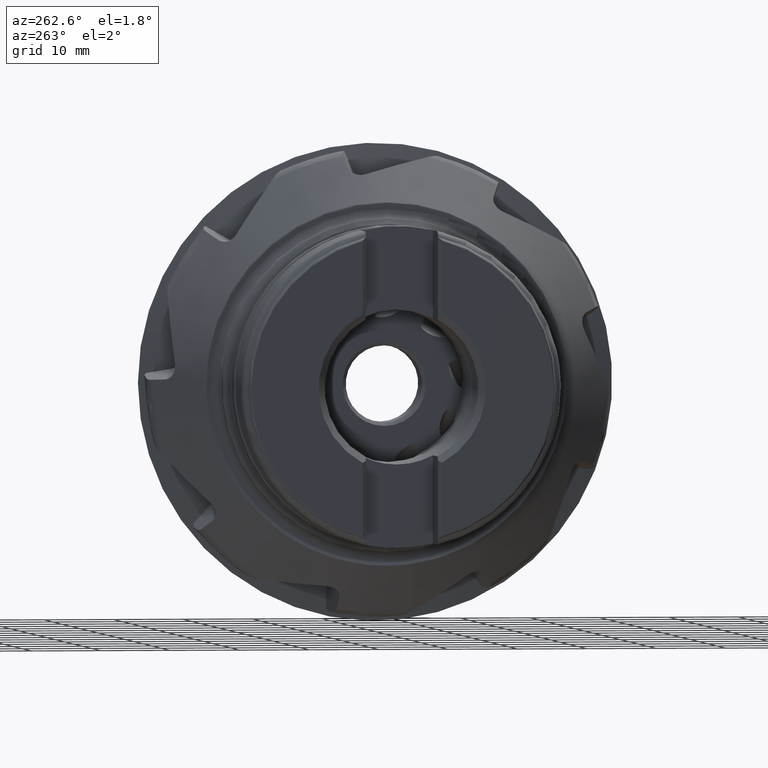
[diagram: clean part render]
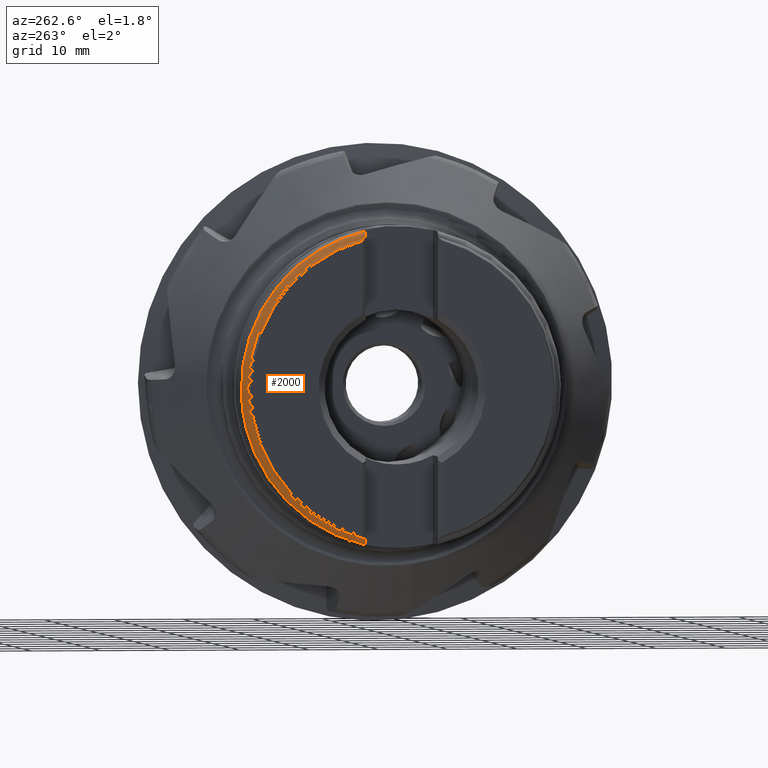
[diagram: same view with one face highlighted and labeled with its STEP entity id]
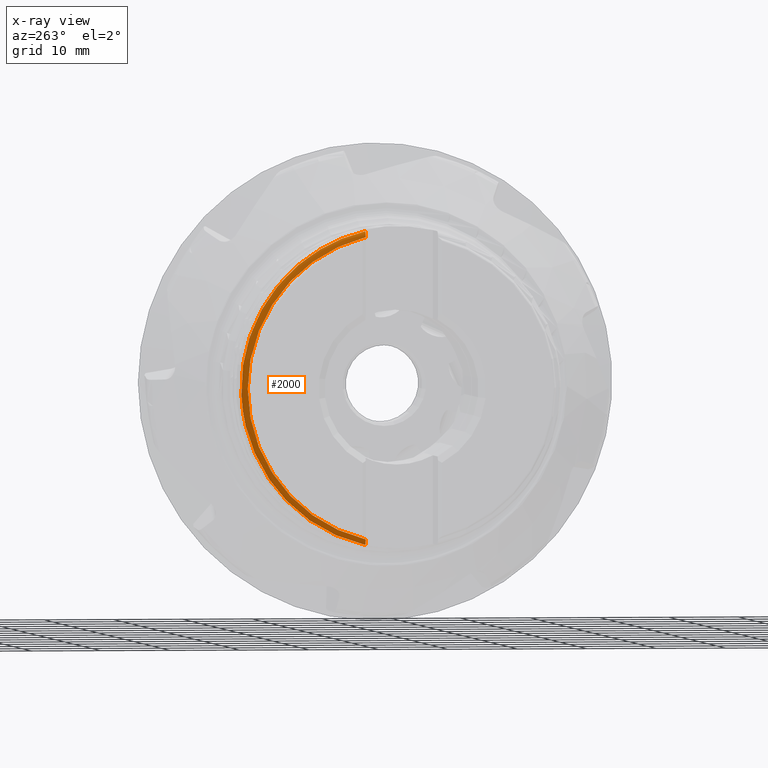
[diagram: x-ray of the same camera — body ghosted, the highlighted face saturated]
A machine part, auxiliary view. The second image highlights one B-rep face of the part: STEP entity #2000.
The next image is the same camera in x-ray: the body ghosted, the highlighted face saturated — about 0% of this face is hidden behind the body in this view.
In plain terms, the highlighted toroidal blend (fillet) surface has major radius 22 mm and minor (blend) radius 1 mm.
Its self-contained STEP definition (entity closure, byte-faithful):
#401 = CARTESIAN_POINT ( 'NONE',  ( -38.87899999999999800, 5.199999999999994800, 21.58754328310658000 ) ) ;
#448 = CARTESIAN_POINT ( 'NONE',  ( -38.01558449668618800, 5.199999999999995700, 22.40449208621245000 ) ) ;
#506 = CARTESIAN_POINT ( 'NONE',  ( -37.90023802096011000, 19.60924842205030700, -12.29230215445949200 ) ) ;
#535 = CARTESIAN_POINT ( 'NONE',  ( -38.44704383077042600, 5.199999999999994800, -22.24537780853829400 ) ) ;
#611 = DIRECTION ( 'NONE',  ( 1.000000000000000000, 1.110223024625157000E-016, -0.0000000000000000000 ) ) ;
#692 = CIRCLE ( 'NONE', #1956, 22.20499999999999800 ) ;
#969 = B_SPLINE_CURVE_WITH_KNOTS ( 'NONE', 3,
 ( #5738, #6389, #3185, #6939, #3725, #506, #4274, #1045, #4802, #1600, #5331, #2125, #5868, #2667, #6420, #3203, #6959, #3750 ),
 .UNSPECIFIED., .F., .F.,
 ( 4, 2, 2, 2, 2, 2, 2, 2, 4 ),
 ( 0.03629667594818764000, 0.08972250695813915900, 0.1431483379680906800, 0.1965741689780421400, 0.2499999999879936600, 0.3034258309979451800, 0.3568516620078966400, 0.4102774930178482200, 0.4637033240277996800 ),
 .UNSPECIFIED. ) ;
#1045 = CARTESIAN_POINT ( 'NONE',  ( -37.90023802096011700, 22.56403396095860000, -5.146619020572514600 ) ) ;
#1051 = B_SPLINE_CURVE_WITH_KNOTS ( 'NONE', 3,
 ( #2043, #5255, #6332, #3123, #6874, #3667, #448, #4209 ),
 .UNSPECIFIED., .F., .F.,
 ( 4, 2, 2, 4 ),
 ( 0.001093092714259709900, 0.001780262296063091000, 0.002123847086964781600, 0.002467431877866472200 ),
 .UNSPECIFIED. ) ;
#1075 = CARTESIAN_POINT ( 'NONE',  ( -38.83279863264558400, 5.199999999999994000, -21.81443867434664000 ) ) ;
#1524 = AXIS2_PLACEMENT_3D ( 'NONE', #2339, #3406, #6094 ) ;
#1546 = VERTEX_POINT ( 'NONE', #3507 ) ;
#1600 = CARTESIAN_POINT ( 'NONE',  ( -37.90023802096010300, 23.00000000019413800, 2.573580370861087400 ) ) ;
#1733 = ORIENTED_EDGE ( 'NONE', *, *, #4868, .T. ) ;
#1943 = EDGE_LOOP ( 'NONE', ( #4720, #3806, #2203, #1733 ) ) ;
#1956 = AXIS2_PLACEMENT_3D ( 'NONE', #3837, #611, #4369 ) ;
#2000 = ADVANCED_FACE ( 'NONE', ( #4891 ), #2034, .T. ) ;
#2034 = TOROIDAL_SURFACE ( 'NONE', #1524, 22.00000002832699100, 1.000000000000001800 ) ;
#2043 = CARTESIAN_POINT ( 'NONE',  ( -38.87899999999999800, 5.199999999999994800, 21.58754328310658000 ) ) ;
#2125 = CARTESIAN_POINT ( 'NONE',  ( -37.90023802096010300, 20.86847972057372000, 10.00649139739876500 ) ) ;
#2203 = ORIENTED_EDGE ( 'NONE', *, *, #4643, .T. ) ;
#2339 = CARTESIAN_POINT ( 'NONE',  ( -37.90023802096011000, -3.469446951953614200E-015, 0.0000000000000000000 ) ) ;
#2374 = VERTEX_POINT ( 'NONE', #6582 ) ;
#2667 = CARTESIAN_POINT ( 'NONE',  ( -37.90023802096010300, 16.40741438976009900, 16.32237939079059400 ) ) ;
#2742 = EDGE_CURVE ( 'NONE', #2374, #1546, #3635, .T. ) ;
#3123 = CARTESIAN_POINT ( 'NONE',  ( -38.44654180232642200, 5.199999999999995700, 22.24570046653463300 ) ) ;
#3185 = CARTESIAN_POINT ( 'NONE',  ( -37.90023802096011000, 10.11479201349475900, -20.81620278672252800 ) ) ;
#3203 = CARTESIAN_POINT ( 'NONE',  ( -37.90023802096011700, 10.11479201663543600, 20.81620278519644500 ) ) ;
#3406 = DIRECTION ( 'NONE',  ( 1.000000000000000000, 1.110223024625157000E-016, -0.0000000000000000000 ) ) ;
#3507 = CARTESIAN_POINT ( 'NONE',  ( -38.87899999999999800, 5.199999999999994800, -21.58754328310658000 ) ) ;
#3635 = B_SPLINE_CURVE_WITH_KNOTS ( 'NONE', 3,
 ( #6426, #4785, #6963, #3754, #535, #4293, #1075, #4835 ),
 .UNSPECIFIED., .F., .F.,
 ( 4, 2, 2, 4 ),
 ( 0.005669678194366085800, 0.006012750231703355200, 0.006355822269040625400, 0.007041966343715165000 ),
 .UNSPECIFIED. ) ;
#3667 = CARTESIAN_POINT ( 'NONE',  ( -38.12964888399678600, 5.199999999999994800, 22.38408018378375500 ) ) ;
#3725 = CARTESIAN_POINT ( 'NONE',  ( -37.90023802096010300, 16.40741438729743300, -16.32237939326607900 ) ) ;
#3750 = CARTESIAN_POINT ( 'NONE',  ( -37.90011900015348800, 5.200000003380011100, 22.40446384015578500 ) ) ;
#3754 = CARTESIAN_POINT ( 'NONE',  ( -38.34519710526895900, 5.199999999999994000, -22.30466549502941800 ) ) ;
#3806 = ORIENTED_EDGE ( 'NONE', *, *, #2742, .T. ) ;
#3837 = CARTESIAN_POINT ( 'NONE',  ( -38.87899999999999800, -4.316436097440147400E-015, 0.0000000000000000000 ) ) ;
#4186 = CARTESIAN_POINT ( 'NONE',  ( -37.90011900015348800, 5.200000003380011100, 22.40446384015578500 ) ) ;
#4209 = CARTESIAN_POINT ( 'NONE',  ( -37.90011900015348800, 5.200000003380011100, 22.40446384015578500 ) ) ;
#4274 = CARTESIAN_POINT ( 'NONE',  ( -37.90023802096011000, 20.86847971906398400, -10.00649140054731800 ) ) ;
#4293 = CARTESIAN_POINT ( 'NONE',  ( -38.71237594384091800, 5.199999999999995700, -22.02121008489639200 ) ) ;
#4369 = DIRECTION ( 'NONE',  ( 0.0000000000000000000, 1.000000000000000000, 0.0000000000000000000 ) ) ;
#4643 = EDGE_CURVE ( 'NONE', #1546, #6286, #692, .T. ) ;
#4720 = ORIENTED_EDGE ( 'NONE', *, *, #5017, .F. ) ;
#4785 = CARTESIAN_POINT ( 'NONE',  ( -38.01441368843077100, 5.199999999999995700, -22.40449179766993000 ) ) ;
#4802 = CARTESIAN_POINT ( 'NONE',  ( -37.90023802096010300, 22.99999999980585100, -2.573580374331242600 ) ) ;
#4835 = CARTESIAN_POINT ( 'NONE',  ( -38.87899999999999800, 5.199999999999994800, -21.58754328310658000 ) ) ;
#4868 = EDGE_CURVE ( 'NONE', #6286, #6711, #1051, .T. ) ;
#4891 = FACE_OUTER_BOUND ( 'NONE', #1943, .T. ) ;
#5017 = EDGE_CURVE ( 'NONE', #2374, #6711, #969, .T. ) ;
#5255 = CARTESIAN_POINT ( 'NONE',  ( -38.83295763087394200, 5.199999999999994800, 21.81365783240845600 ) ) ;
#5331 = CARTESIAN_POINT ( 'NONE',  ( -37.90023802096010300, 22.56403396173510600, 5.146619017168135600 ) ) ;
#5738 = CARTESIAN_POINT ( 'NONE',  ( -37.90011901048005400, 5.199999999999996600, -22.40446384094027000 ) ) ;
#5868 = CARTESIAN_POINT ( 'NONE',  ( -37.90023802096011000, 19.60924842390493300, 12.29230215150091800 ) ) ;
#6094 = DIRECTION ( 'NONE',  ( -1.110223024625157000E-016, 1.000000000000000000, 0.0000000000000000000 ) ) ;
#6286 = VERTEX_POINT ( 'NONE', #401 ) ;
#6332 = CARTESIAN_POINT ( 'NONE',  ( -38.71184036475738600, 5.199999999999993100, 22.02186466019277900 ) ) ;
#6389 = CARTESIAN_POINT ( 'NONE',  ( -37.90023802096011000, 7.706942973894982200, -21.82261088713591900 ) ) ;
#6420 = CARTESIAN_POINT ( 'NONE',  ( -37.90023802096010300, 14.46548562298785100, 18.06579756405301400 ) ) ;
#6426 = CARTESIAN_POINT ( 'NONE',  ( -37.90011901048005400, 5.199999999999996600, -22.40446384094027000 ) ) ;
#6582 = CARTESIAN_POINT ( 'NONE',  ( -37.90011901048005400, 5.199999999999996600, -22.40446384094027000 ) ) ;
#6711 = VERTEX_POINT ( 'NONE', #4186 ) ;
#6874 = CARTESIAN_POINT ( 'NONE',  ( -38.34680158980671600, 5.199999999999994800, 22.30401204591270700 ) ) ;
#6939 = CARTESIAN_POINT ( 'NONE',  ( -37.90023802096011700, 14.46548562026215000, -18.06579756623550600 ) ) ;
#6959 = CARTESIAN_POINT ( 'NONE',  ( -37.90023802096011000, 7.706942977187488000, 21.82261088597312000 ) ) ;
#6963 = CARTESIAN_POINT ( 'NONE',  ( -38.13031654679293300, 5.199999999999995700, -22.38377188757237600 ) ) ;